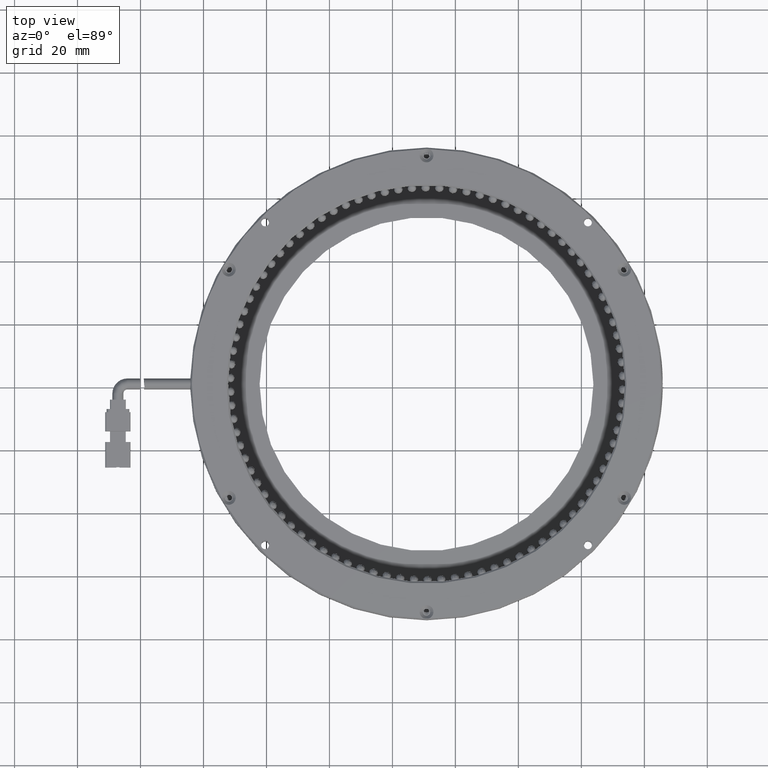
[diagram: clean part render]
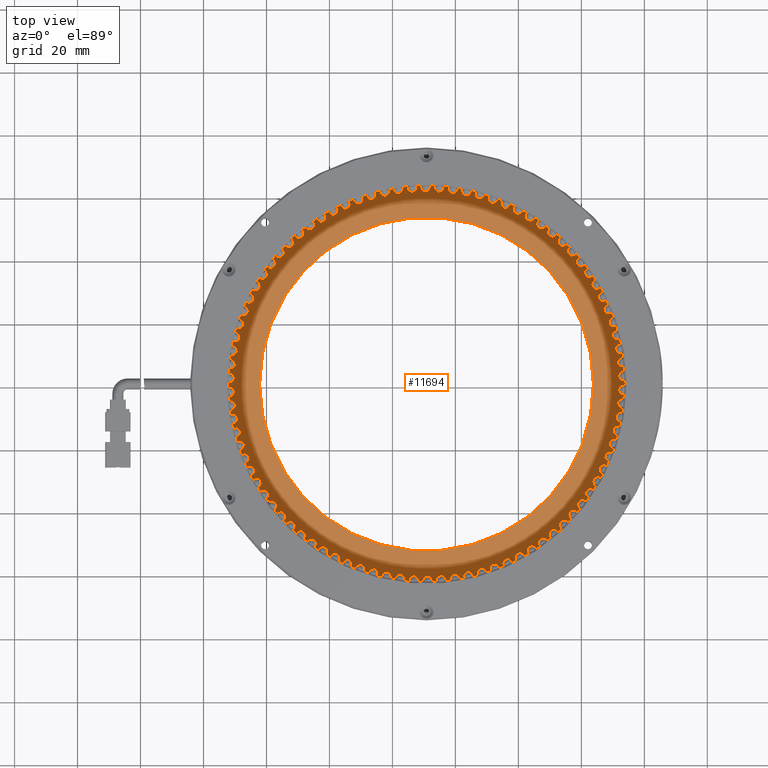
[diagram: same view with one face highlighted and labeled with its STEP entity id]
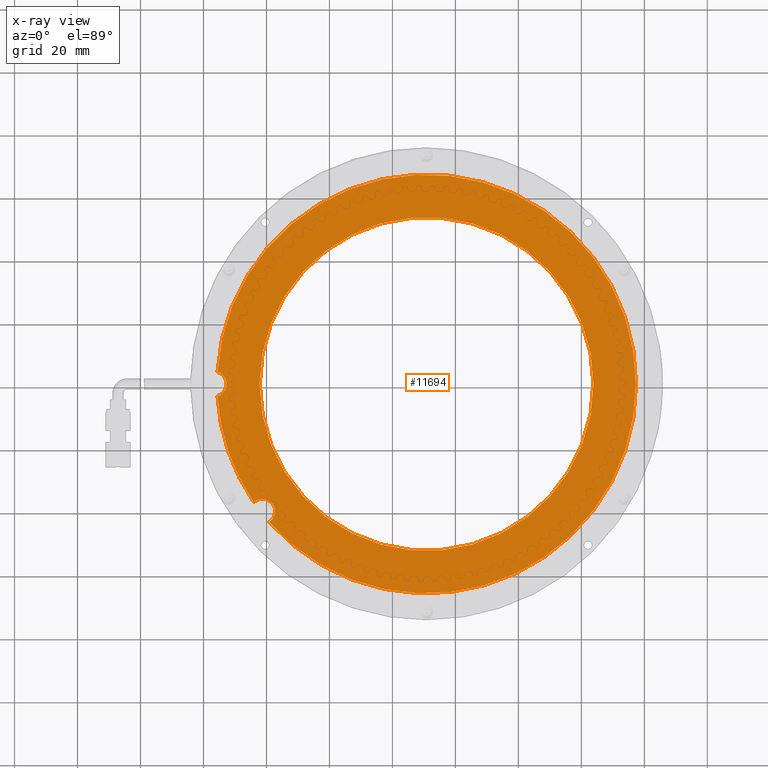
[diagram: x-ray of the same camera — body ghosted, the highlighted face saturated]
A machine part, top view. The second image highlights one B-rep face of the part: STEP entity #11694.
The next image is the same camera in x-ray: the body ghosted, the highlighted face saturated — about 0% of this face is hidden behind the body in this view.
In plain terms, the highlighted planar face has unit normal (0, 0, 1).
Its self-contained STEP definition (entity closure, byte-faithful):
#2512 = CARTESIAN_POINT ( 'NONE',  ( 77.32239847715735000, 1.095939086294420100, -1.500000000000062800 ) ) ;
#2514 = DIRECTION ( 'NONE',  ( -0.0000000000000000000, -0.0000000000000000000, 1.000000000000000000 ) ) ;
#3037 = ORIENTED_EDGE ( 'NONE', *, *, #51810, .T. ) ;
#3325 = CIRCLE ( 'NONE', #36496, 4.000000000000003600 ) ;
#3687 = CARTESIAN_POINT ( 'NONE',  ( 10.82239847715735200, 1.095939086294420100, -1.500000000000062800 ) ) ;
#5180 = EDGE_CURVE ( 'NONE', #57952, #11481, #52392, .T. ) ;
#5190 = CARTESIAN_POINT ( 'NONE',  ( -56.67760152284265000, 1.095939086294420100, -1.500000000000062800 ) ) ;
#5435 = DIRECTION ( 'NONE',  ( -0.0000000000000000000, -0.0000000000000000000, -1.000000000000000000 ) ) ;
#6254 = DIRECTION ( 'NONE',  ( -0.0000000000000000000, -0.0000000000000000000, 1.000000000000000000 ) ) ;
#6298 = VERTEX_POINT ( 'NONE', #70206 ) ;
#7884 = VERTEX_POINT ( 'NONE', #31878 ) ;
#8849 = CARTESIAN_POINT ( 'NONE',  ( -41.26175405580935500, -39.37004536248179000, -1.500000000000062800 ) ) ;
#9075 = CIRCLE ( 'NONE', #51708, 66.50000000000000000 ) ;
#9267 = VERTEX_POINT ( 'NONE', #2512 ) ;
#9829 = DIRECTION ( 'NONE',  ( 1.000000000000000000, 0.0000000000000000000, 0.0000000000000000000 ) ) ;
#11355 = DIRECTION ( 'NONE',  ( 1.000000000000000000, 3.577867169202161500E-015, 0.0000000000000000000 ) ) ;
#11481 = VERTEX_POINT ( 'NONE', #43101 ) ;
#11694 = ADVANCED_FACE ( 'NONE', ( #37759, #53902 ), #69470, .T. ) ;
#11876 = CARTESIAN_POINT ( 'NONE',  ( -52.67760152284265000, 1.095939086294420100, -1.500000000000062800 ) ) ;
#14817 = ORIENTED_EDGE ( 'NONE', *, *, #5180, .T. ) ;
#14837 = AXIS2_PLACEMENT_3D ( 'NONE', #41898, #5435, #47969 ) ;
#14959 = DIRECTION ( 'NONE',  ( 1.000000000000000000, 1.734723475976802600E-015, 0.0000000000000000000 ) ) ;
#15477 = EDGE_CURVE ( 'NONE', #30261, #36201, #44591, .T. ) ;
#19147 = CARTESIAN_POINT ( 'NONE',  ( -41.26175405580935500, -39.37004536248179000, -1.500000000000062800 ) ) ;
#20447 = CIRCLE ( 'NONE', #70171, 53.00000000000000700 ) ;
#20929 = CARTESIAN_POINT ( 'NONE',  ( 10.82239847715735200, 1.095939086294420100, -1.500000000000062800 ) ) ;
#21304 = DIRECTION ( 'NONE',  ( 0.0000000000000000000, 0.0000000000000000000, -1.000000000000000000 ) ) ;
#22501 = EDGE_CURVE ( 'NONE', #6298, #61754, #78701, .T. ) ;
#25223 = DIRECTION ( 'NONE',  ( 1.000000000000000000, 0.0000000000000000000, 0.0000000000000000000 ) ) ;
#27022 = DIRECTION ( 'NONE',  ( -1.000000000000000000, 0.0000000000000000000, 0.0000000000000000000 ) ) ;
#27201 = DIRECTION ( 'NONE',  ( 0.0000000000000000000, 0.0000000000000000000, 1.000000000000000000 ) ) ;
#27440 = CIRCLE ( 'NONE', #50394, 4.000000000000003600 ) ;
#27488 = EDGE_LOOP ( 'NONE', ( #46779, #60081, #58860, #3037, #64415, #35086, #28462 ) ) ;
#28462 = ORIENTED_EDGE ( 'NONE', *, *, #53693, .T. ) ;
#30261 = VERTEX_POINT ( 'NONE', #61478 ) ;
#30704 = CIRCLE ( 'NONE', #36243, 66.50000000000000000 ) ;
#31238 = EDGE_CURVE ( 'NONE', #9267, #7884, #9075, .T. ) ;
#31878 = CARTESIAN_POINT ( 'NONE',  ( -55.56649041173153600, 4.938520523136835600, -1.500000000000062800 ) ) ;
#35086 = ORIENTED_EDGE ( 'NONE', *, *, #44616, .T. ) ;
#35575 = ORIENTED_EDGE ( 'NONE', *, *, #72673, .T. ) ;
#35869 = CARTESIAN_POINT ( 'NONE',  ( -39.15671482136050200, -42.77134067771552800, -1.500000000000062800 ) ) ;
#36201 = VERTEX_POINT ( 'NONE', #35869 ) ;
#36243 = AXIS2_PLACEMENT_3D ( 'NONE', #38969, #2514, #45086 ) ;
#36496 = AXIS2_PLACEMENT_3D ( 'NONE', #57693, #21304, #63828 ) ;
#37759 = FACE_BOUND ( 'NONE', #50806, .T. ) ;
#38251 = VERTEX_POINT ( 'NONE', #11876 ) ;
#38969 = CARTESIAN_POINT ( 'NONE',  ( 10.82239847715735200, 1.095939086294420100, -1.500000000000062800 ) ) ;
#41898 = CARTESIAN_POINT ( 'NONE',  ( 10.82239847715735200, 1.095939086294420100, -1.500000000000062800 ) ) ;
#42530 = CIRCLE ( 'NONE', #48772, 4.000000000000010700 ) ;
#42709 = CARTESIAN_POINT ( 'NONE',  ( 10.82239847715735200, 1.095939086294420100, -1.500000000000062800 ) ) ;
#43101 = CARTESIAN_POINT ( 'NONE',  ( -42.17760152284265000, 1.095939086294420100, -1.500000000000062800 ) ) ;
#43638 = CARTESIAN_POINT ( 'NONE',  ( 63.82239847715735700, 1.095939086294426700, -1.500000000000062800 ) ) ;
#44207 = AXIS2_PLACEMENT_3D ( 'NONE', #63633, #27201, #69720 ) ;
#44591 = CIRCLE ( 'NONE', #73619, 4.000000000000010700 ) ;
#44616 = EDGE_CURVE ( 'NONE', #7884, #38251, #27440, .T. ) ;
#45086 = DIRECTION ( 'NONE',  ( 1.000000000000000000, 0.0000000000000000000, 0.0000000000000000000 ) ) ;
#46248 = DIRECTION ( 'NONE',  ( -0.0000000000000000000, -0.0000000000000000000, 1.000000000000000000 ) ) ;
#46779 = ORIENTED_EDGE ( 'NONE', *, *, #22501, .T. ) ;
#47749 = DIRECTION ( 'NONE',  ( 0.0000000000000000000, 0.0000000000000000000, -1.000000000000000000 ) ) ;
#47777 = AXIS2_PLACEMENT_3D ( 'NONE', #3687, #46248, #9829 ) ;
#47969 = DIRECTION ( 'NONE',  ( -1.000000000000000000, 0.0000000000000000000, 0.0000000000000000000 ) ) ;
#48095 = EDGE_CURVE ( 'NONE', #61754, #30261, #42530, .T. ) ;
#48772 = AXIS2_PLACEMENT_3D ( 'NONE', #8849, #51390, #14959 ) ;
#48787 = DIRECTION ( 'NONE',  ( 1.000000000000000000, 0.0000000000000000000, 0.0000000000000000000 ) ) ;
#50394 = AXIS2_PLACEMENT_3D ( 'NONE', #5190, #47749, #11355 ) ;
#50806 = EDGE_LOOP ( 'NONE', ( #35575, #14817 ) ) ;
#51390 = DIRECTION ( 'NONE',  ( 0.0000000000000000000, 0.0000000000000000000, -1.000000000000000000 ) ) ;
#51708 = AXIS2_PLACEMENT_3D ( 'NONE', #42709, #6254, #48787 ) ;
#51810 = EDGE_CURVE ( 'NONE', #36201, #9267, #30704, .T. ) ;
#52392 = CIRCLE ( 'NONE', #14837, 53.00000000000000700 ) ;
#53693 = EDGE_CURVE ( 'NONE', #38251, #6298, #3325, .T. ) ;
#53902 = FACE_OUTER_BOUND ( 'NONE', #27488, .T. ) ;
#57693 = CARTESIAN_POINT ( 'NONE',  ( -56.67760152284265000, 1.095939086294420100, -1.500000000000062800 ) ) ;
#57952 = VERTEX_POINT ( 'NONE', #43638 ) ;
#58860 = ORIENTED_EDGE ( 'NONE', *, *, #15477, .T. ) ;
#60081 = ORIENTED_EDGE ( 'NONE', *, *, #48095, .T. ) ;
#61478 = CARTESIAN_POINT ( 'NONE',  ( -37.26175405580934100, -39.37004536248179000, -1.500000000000062800 ) ) ;
#61646 = DIRECTION ( 'NONE',  ( 0.0000000000000000000, 0.0000000000000000000, -1.000000000000000000 ) ) ;
#61754 = VERTEX_POINT ( 'NONE', #70116 ) ;
#63445 = DIRECTION ( 'NONE',  ( -0.0000000000000000000, -0.0000000000000000000, -1.000000000000000000 ) ) ;
#63633 = CARTESIAN_POINT ( 'NONE',  ( 10.82239847715735200, 1.095939086294420100, -1.500000000000062800 ) ) ;
#63828 = DIRECTION ( 'NONE',  ( 1.000000000000000000, 0.0000000000000000000, 0.0000000000000000000 ) ) ;
#64415 = ORIENTED_EDGE ( 'NONE', *, *, #31238, .T. ) ;
#69470 = PLANE ( 'NONE',  #44207 ) ;
#69720 = DIRECTION ( 'NONE',  ( 1.000000000000000000, 0.0000000000000000000, -0.0000000000000000000 ) ) ;
#70116 = CARTESIAN_POINT ( 'NONE',  ( -44.03720466399818900, -36.48961589424188600, -1.500000000000062800 ) ) ;
#70171 = AXIS2_PLACEMENT_3D ( 'NONE', #20929, #63445, #27022 ) ;
#70206 = CARTESIAN_POINT ( 'NONE',  ( -55.56649041173153600, -2.746642350547932000, -1.500000000000062800 ) ) ;
#72673 = EDGE_CURVE ( 'NONE', #11481, #57952, #20447, .T. ) ;
#73619 = AXIS2_PLACEMENT_3D ( 'NONE', #19147, #61646, #25223 ) ;
#78701 = CIRCLE ( 'NONE', #47777, 66.50000000000000000 ) ;